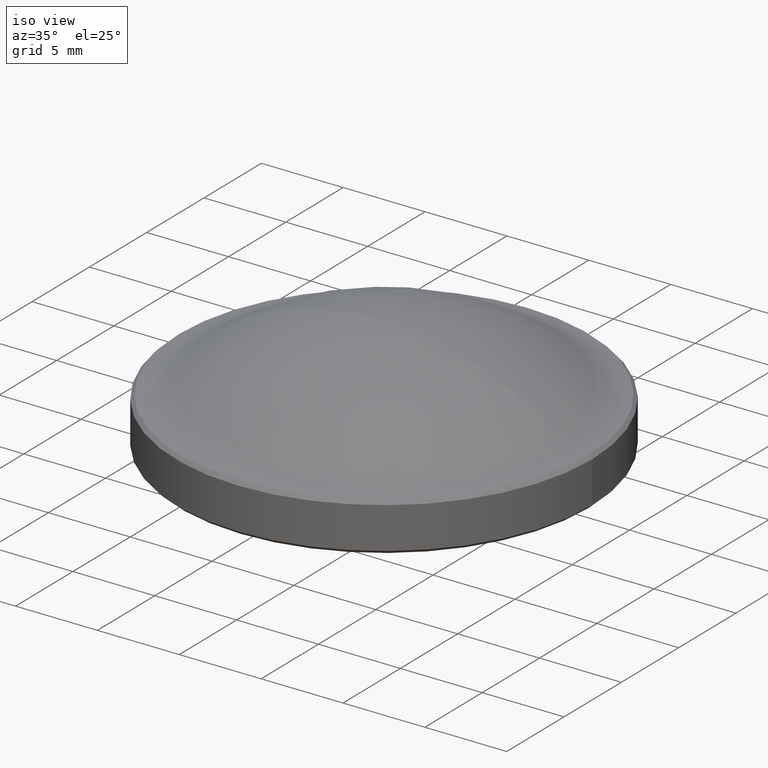
[diagram: clean part render]
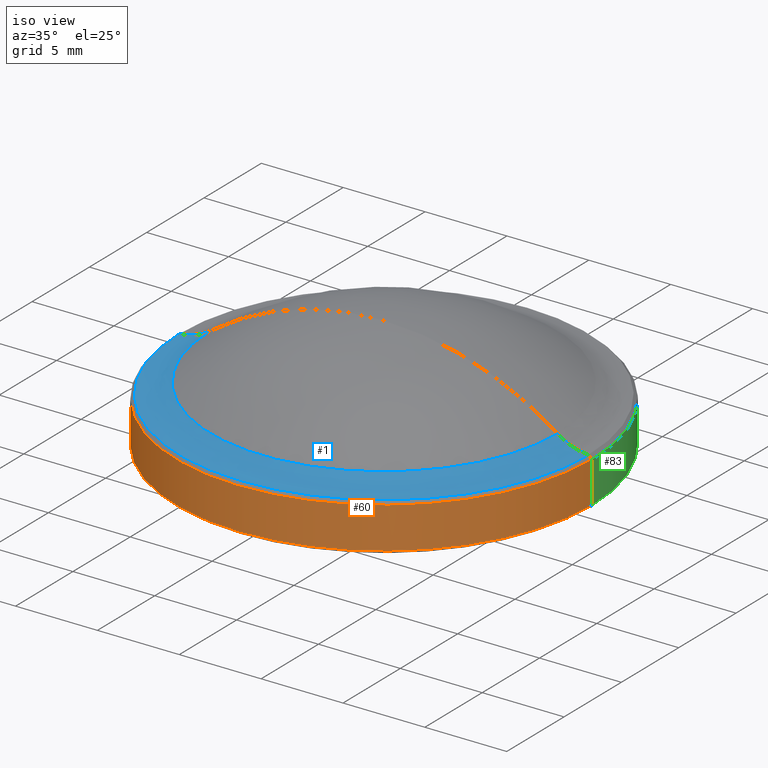
[diagram: same view with three faces highlighted in distinct colors, each labeled with its STEP entity id]
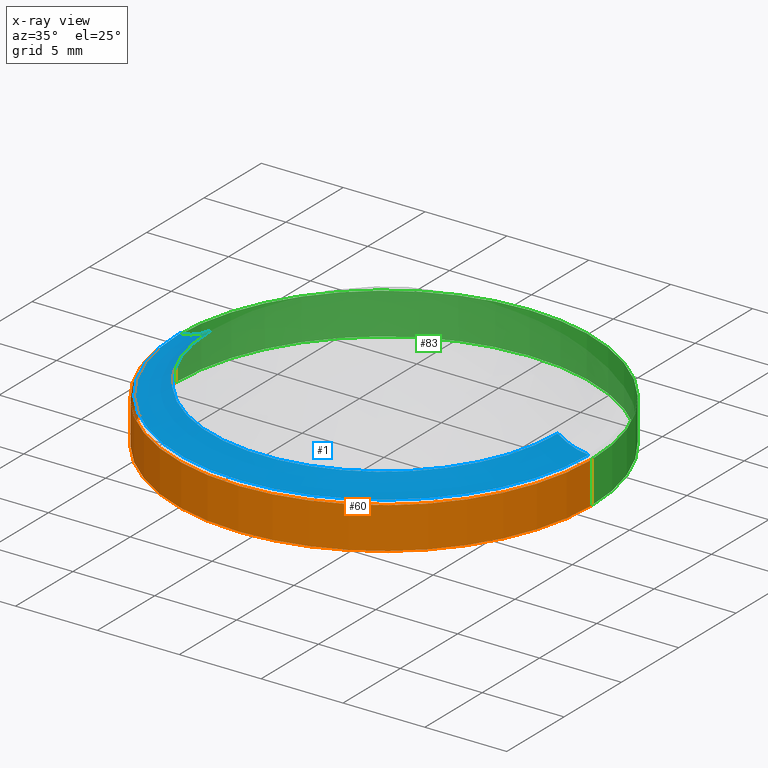
[diagram: x-ray of the same camera — body ghosted, the three highlighted faces saturated]
A machine part, iso view with three faces highlighted in distinct colors.
The next image is the same camera in x-ray (body ghosted, the three faces saturated) — at least one of them is partly hidden behind the body in this view.
Their STEP definitions:

[orange] entity #60 — the highlighted cylindrical surface (partial cylindrical patch) has radius 12.7 mm, axis along (-0, -0, -1).
#5 = CIRCLE ( 'NONE', #151, 12.69999999999999929 ) ;
#8 = VERTEX_POINT ( 'NONE', #225 ) ;
#10 = CYLINDRICAL_SURFACE ( 'NONE', #104, 12.69999999999999929 ) ;
#22 = DIRECTION ( 'NONE',  ( -0.000000000000000000, -0.000000000000000000, 1.000000000000000000 ) ) ;
#29 = ORIENTED_EDGE ( 'NONE', *, *, #221, .T. ) ;
#51 = ORIENTED_EDGE ( 'NONE', *, *, #176, .T. ) ;
#56 = DIRECTION ( 'NONE',  ( -0.000000000000000000, -0.000000000000000000, -1.000000000000000000 ) ) ;
#60 = ADVANCED_FACE ( 'NONE', ( #61 ), #10, .T. ) ;
#61 = FACE_OUTER_BOUND ( 'NONE', #256, .T. ) ;
#62 = DIRECTION ( 'NONE',  ( -0.000000000000000000, -0.000000000000000000, -1.000000000000000000 ) ) ;
#69 = CARTESIAN_POINT ( 'NONE',  ( 0.000000000000000000, 0.000000000000000000, 2.730000000000021299 ) ) ;
#85 = CARTESIAN_POINT ( 'NONE',  ( 0.000000000000000000, 0.000000000000000000, 2.930000000000000160 ) ) ;
#86 = LINE ( 'NONE', #183, #136 ) ;
#89 = EDGE_CURVE ( 'NONE', #235, #211, #86, .T. ) ;
#90 = LINE ( 'NONE', #103, #112 ) ;
#97 = ORIENTED_EDGE ( 'NONE', *, *, #308, .T. ) ;
#103 = CARTESIAN_POINT ( 'NONE',  ( -12.69999999999999929, 0.000000000000000000, 2.930000000000000160 ) ) ;
#104 = AXIS2_PLACEMENT_3D ( 'NONE', #85, #62, #111 ) ;
#111 = DIRECTION ( 'NONE',  ( -1.000000000000000000, 0.000000000000000000, 0.000000000000000000 ) ) ;
#112 = VECTOR ( 'NONE', #56, 1000.000000000000000 ) ;
#117 = DIRECTION ( 'NONE',  ( -1.224646799147353207E-16, 0.000000000000000000, -1.000000000000000000 ) ) ;
#136 = VECTOR ( 'NONE', #276, 1000.000000000000000 ) ;
#139 = CARTESIAN_POINT ( 'NONE',  ( 0.000000000000000000, 0.000000000000000000, 0.2000000000000196065 ) ) ;
#151 = AXIS2_PLACEMENT_3D ( 'NONE', #139, #22, #187 ) ;
#158 = CIRCLE ( 'NONE', #224, 12.69999999999999929 ) ;
#176 = EDGE_CURVE ( 'NONE', #281, #211, #5, .T. ) ;
#183 = CARTESIAN_POINT ( 'NONE',  ( 12.69999999999999929, 1.555301434917138038E-15, 2.930000000000000160 ) ) ;
#187 = DIRECTION ( 'NONE',  ( 1.000000000000000000, 0.000000000000000000, 0.000000000000000000 ) ) ;
#211 = VERTEX_POINT ( 'NONE', #313 ) ;
#221 = EDGE_CURVE ( 'NONE', #8, #281, #90, .T. ) ;
#222 = ORIENTED_EDGE ( 'NONE', *, *, #89, .F. ) ;
#224 = AXIS2_PLACEMENT_3D ( 'NONE', #69, #117, #311 ) ;
#225 = CARTESIAN_POINT ( 'NONE',  ( -12.69999999999999929, 0.000000000000000000, 2.730000000000023075 ) ) ;
#235 = VERTEX_POINT ( 'NONE', #245 ) ;
#245 = CARTESIAN_POINT ( 'NONE',  ( 12.69999999999999929, 1.555301434917138038E-15, 2.730000000000019522 ) ) ;
#256 = EDGE_LOOP ( 'NONE', ( #222, #97, #29, #51 ) ) ;
#276 = DIRECTION ( 'NONE',  ( -0.000000000000000000, -0.000000000000000000, -1.000000000000000000 ) ) ;
#278 = CARTESIAN_POINT ( 'NONE',  ( -12.69999999999999929, 0.000000000000000000, 0.2000000000000196065 ) ) ;
#281 = VERTEX_POINT ( 'NONE', #278 ) ;
#308 = EDGE_CURVE ( 'NONE', #235, #8, #158, .T. ) ;
#311 = DIRECTION ( 'NONE',  ( 1.000000000000000000, 0.000000000000000000, -1.365923996832131609E-16 ) ) ;
#313 = CARTESIAN_POINT ( 'NONE',  ( 12.69999999999999929, 1.555301434917138038E-15, 0.2000000000000196065 ) ) ;

[blue] entity #1 — the highlighted toroidal blend (fillet) surface has major radius 12.7 mm and minor (blend) radius 3.5975 mm.
#1 = ADVANCED_FACE ( 'NONE', ( #135 ), #18, .F. ) ;
#13 = ORIENTED_EDGE ( 'NONE', *, *, #282, .T. ) ;
#18 = TOROIDAL_SURFACE ( 'NONE', #269, 12.69999999999999929, 3.597496314496318792 ) ;
#20 = CARTESIAN_POINT ( 'NONE',  ( -10.60895851618369967, 0.000000000000000000, 3.600121168435617580 ) ) ;
#46 = VERTEX_POINT ( 'NONE', #305 ) ;
#49 = DIRECTION ( 'NONE',  ( 1.224646799147353207E-16, -0.000000000000000000, 1.000000000000000000 ) ) ;
#50 = DIRECTION ( 'NONE',  ( -1.000000000000000000, 0.000000000000000000, 1.226362234330445841E-16 ) ) ;
#57 = AXIS2_PLACEMENT_3D ( 'NONE', #122, #49, #73 ) ;
#63 = CARTESIAN_POINT ( 'NONE',  ( -12.69999999999999929, 0.000000000000000000, 6.527496314496318064 ) ) ;
#64 = CARTESIAN_POINT ( 'NONE',  ( 0.000000000000000000, 0.000000000000000000, 6.527496314496316288 ) ) ;
#66 = CARTESIAN_POINT ( 'NONE',  ( -12.49410307714051882, 0.000000000000000000, 2.935896922863991954 ) ) ;
#73 = DIRECTION ( 'NONE',  ( 1.000000000000000000, 0.000000000000000000, -1.388433779733579211E-16 ) ) ;
#76 = ORIENTED_EDGE ( 'NONE', *, *, #194, .T. ) ;
#77 = AXIS2_PLACEMENT_3D ( 'NONE', #202, #253, #284 ) ;
#93 = EDGE_CURVE ( 'NONE', #277, #181, #157, .T. ) ;
#102 = EDGE_LOOP ( 'NONE', ( #76, #13, #288, #251 ) ) ;
#109 = DIRECTION ( 'NONE',  ( -1.000000000000000000, 0.000000000000000000, 1.224646799147353207E-16 ) ) ;
#122 = CARTESIAN_POINT ( 'NONE',  ( -4.398440698782108916E-16, 0.000000000000000000, 2.935896922863990177 ) ) ;
#133 = CIRCLE ( 'NONE', #57, 12.49410307713541712 ) ;
#135 = FACE_OUTER_BOUND ( 'NONE', #102, .T. ) ;
#140 = DIRECTION ( 'NONE',  ( 0.000000000000000000, 0.000000000000000000, -1.000000000000000000 ) ) ;
#143 = AXIS2_PLACEMENT_3D ( 'NONE', #261, #289, #50 ) ;
#157 = CIRCLE ( 'NONE', #241, 3.597496314496318792 ) ;
#165 = CIRCLE ( 'NONE', #77, 3.597496314496318348 ) ;
#167 = CARTESIAN_POINT ( 'NONE',  ( 10.60895851618369967, 1.414654521538122764E-15, 3.600121168435614916 ) ) ;
#174 = VERTEX_POINT ( 'NONE', #167 ) ;
#181 = VERTEX_POINT ( 'NONE', #20 ) ;
#194 = EDGE_CURVE ( 'NONE', #277, #46, #133, .T. ) ;
#198 = EDGE_CURVE ( 'NONE', #174, #181, #291, .T. ) ;
#202 = CARTESIAN_POINT ( 'NONE',  ( 12.69999999999999929, 1.555301434917138433E-15, 6.527496314496314511 ) ) ;
#229 = DIRECTION ( 'NONE',  ( -1.224646799147353207E-16, -0.000000000000000000, -1.000000000000000000 ) ) ;
#241 = AXIS2_PLACEMENT_3D ( 'NONE', #63, #292, #140 ) ;
#251 = ORIENTED_EDGE ( 'NONE', *, *, #93, .F. ) ;
#253 = DIRECTION ( 'NONE',  ( -1.224646799147353207E-16, 1.000000000000000000, 1.499759782661857608E-32 ) ) ;
#261 = CARTESIAN_POINT ( 'NONE',  ( 8.206617439655612360E-17, 0.000000000000000000, 3.600121168435616248 ) ) ;
#269 = AXIS2_PLACEMENT_3D ( 'NONE', #64, #229, #109 ) ;
#277 = VERTEX_POINT ( 'NONE', #66 ) ;
#282 = EDGE_CURVE ( 'NONE', #46, #174, #165, .T. ) ;
#284 = DIRECTION ( 'NONE',  ( -1.000000000000000000, -1.224646799147353700E-16, 0.000000000000000000 ) ) ;
#288 = ORIENTED_EDGE ( 'NONE', *, *, #198, .T. ) ;
#289 = DIRECTION ( 'NONE',  ( -1.224646799147353207E-16, -0.000000000000000000, -1.000000000000000000 ) ) ;
#291 = CIRCLE ( 'NONE', #143, 10.60895851618369967 ) ;
#292 = DIRECTION ( 'NONE',  ( 0.000000000000000000, -1.000000000000000000, 0.000000000000000000 ) ) ;
#305 = CARTESIAN_POINT ( 'NONE',  ( 12.49410307714051882, 1.530086334163723081E-15, 2.935896922863988845 ) ) ;

[green] entity #83 — the highlighted cylindrical surface (partial cylindrical patch) has radius 12.7 mm, axis along (-0, -0, -1).
#2 = CIRCLE ( 'NONE', #274, 12.69999999999999929 ) ;
#8 = VERTEX_POINT ( 'NONE', #225 ) ;
#9 = DIRECTION ( 'NONE',  ( -1.000000000000000000, 0.000000000000000000, 0.000000000000000000 ) ) ;
#39 = CARTESIAN_POINT ( 'NONE',  ( 0.000000000000000000, 0.000000000000000000, 2.930000000000000160 ) ) ;
#56 = DIRECTION ( 'NONE',  ( -0.000000000000000000, -0.000000000000000000, -1.000000000000000000 ) ) ;
#83 = ADVANCED_FACE ( 'NONE', ( #204 ), #254, .T. ) ;
#86 = LINE ( 'NONE', #183, #136 ) ;
#89 = EDGE_CURVE ( 'NONE', #235, #211, #86, .T. ) ;
#90 = LINE ( 'NONE', #103, #112 ) ;
#103 = CARTESIAN_POINT ( 'NONE',  ( -12.69999999999999929, 0.000000000000000000, 2.930000000000000160 ) ) ;
#112 = VECTOR ( 'NONE', #56, 1000.000000000000000 ) ;
#136 = VECTOR ( 'NONE', #276, 1000.000000000000000 ) ;
#138 = EDGE_CURVE ( 'NONE', #8, #235, #2, .T. ) ;
#155 = EDGE_CURVE ( 'NONE', #211, #281, #280, .T. ) ;
#163 = EDGE_LOOP ( 'NONE', ( #248, #299, #199, #250 ) ) ;
#183 = CARTESIAN_POINT ( 'NONE',  ( 12.69999999999999929, 1.555301434917138038E-15, 2.930000000000000160 ) ) ;
#189 = DIRECTION ( 'NONE',  ( -0.000000000000000000, -0.000000000000000000, 1.000000000000000000 ) ) ;
#199 = ORIENTED_EDGE ( 'NONE', *, *, #155, .T. ) ;
#204 = FACE_OUTER_BOUND ( 'NONE', #163, .T. ) ;
#211 = VERTEX_POINT ( 'NONE', #313 ) ;
#215 = DIRECTION ( 'NONE',  ( 1.000000000000000000, 0.000000000000000000, -1.365923996832131609E-16 ) ) ;
#221 = EDGE_CURVE ( 'NONE', #8, #281, #90, .T. ) ;
#225 = CARTESIAN_POINT ( 'NONE',  ( -12.69999999999999929, 0.000000000000000000, 2.730000000000023075 ) ) ;
#227 = DIRECTION ( 'NONE',  ( -0.000000000000000000, -0.000000000000000000, -1.000000000000000000 ) ) ;
#231 = DIRECTION ( 'NONE',  ( -1.224646799147353207E-16, 0.000000000000000000, -1.000000000000000000 ) ) ;
#235 = VERTEX_POINT ( 'NONE', #245 ) ;
#238 = CARTESIAN_POINT ( 'NONE',  ( 0.000000000000000000, 0.000000000000000000, 2.730000000000021299 ) ) ;
#245 = CARTESIAN_POINT ( 'NONE',  ( 12.69999999999999929, 1.555301434917138038E-15, 2.730000000000019522 ) ) ;
#248 = ORIENTED_EDGE ( 'NONE', *, *, #138, .T. ) ;
#250 = ORIENTED_EDGE ( 'NONE', *, *, #221, .F. ) ;
#254 = CYLINDRICAL_SURFACE ( 'NONE', #271, 12.69999999999999929 ) ;
#258 = CARTESIAN_POINT ( 'NONE',  ( 0.000000000000000000, 0.000000000000000000, 0.2000000000000196065 ) ) ;
#266 = DIRECTION ( 'NONE',  ( 1.000000000000000000, 0.000000000000000000, 0.000000000000000000 ) ) ;
#271 = AXIS2_PLACEMENT_3D ( 'NONE', #39, #227, #9 ) ;
#274 = AXIS2_PLACEMENT_3D ( 'NONE', #238, #231, #215 ) ;
#276 = DIRECTION ( 'NONE',  ( -0.000000000000000000, -0.000000000000000000, -1.000000000000000000 ) ) ;
#278 = CARTESIAN_POINT ( 'NONE',  ( -12.69999999999999929, 0.000000000000000000, 0.2000000000000196065 ) ) ;
#280 = CIRCLE ( 'NONE', #297, 12.69999999999999929 ) ;
#281 = VERTEX_POINT ( 'NONE', #278 ) ;
#297 = AXIS2_PLACEMENT_3D ( 'NONE', #258, #189, #266 ) ;
#299 = ORIENTED_EDGE ( 'NONE', *, *, #89, .T. ) ;
#313 = CARTESIAN_POINT ( 'NONE',  ( 12.69999999999999929, 1.555301434917138038E-15, 0.2000000000000196065 ) ) ;